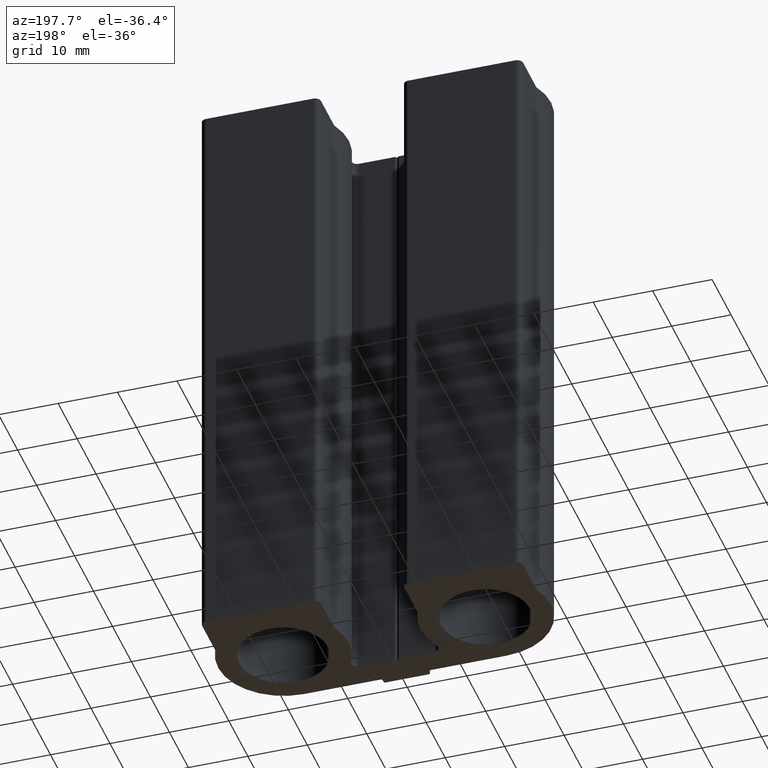
[diagram: clean part render]
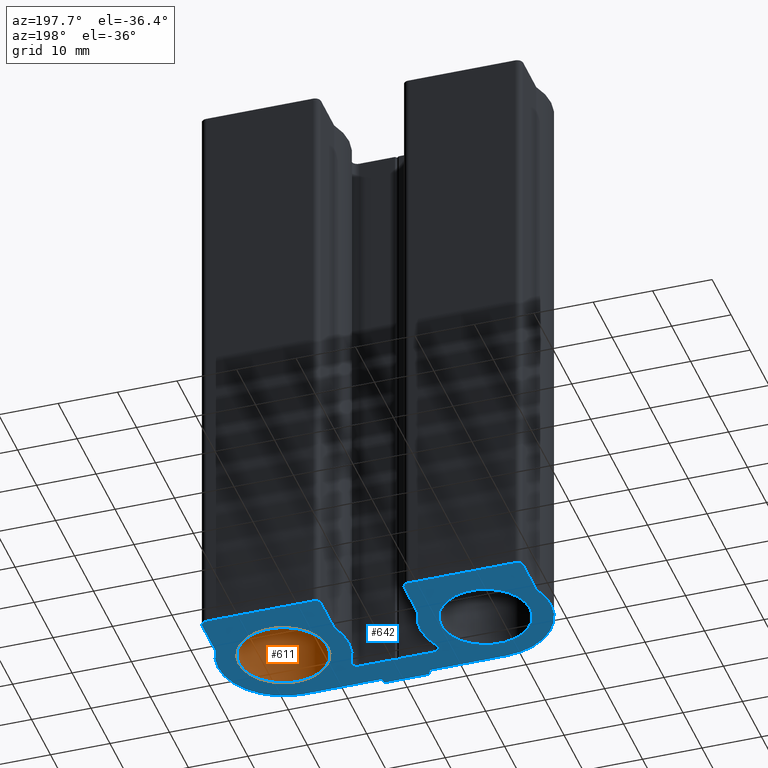
[diagram: same view with the hole feature highlighted: cylindrical wall and planar end face, labeled with their STEP entity ids]
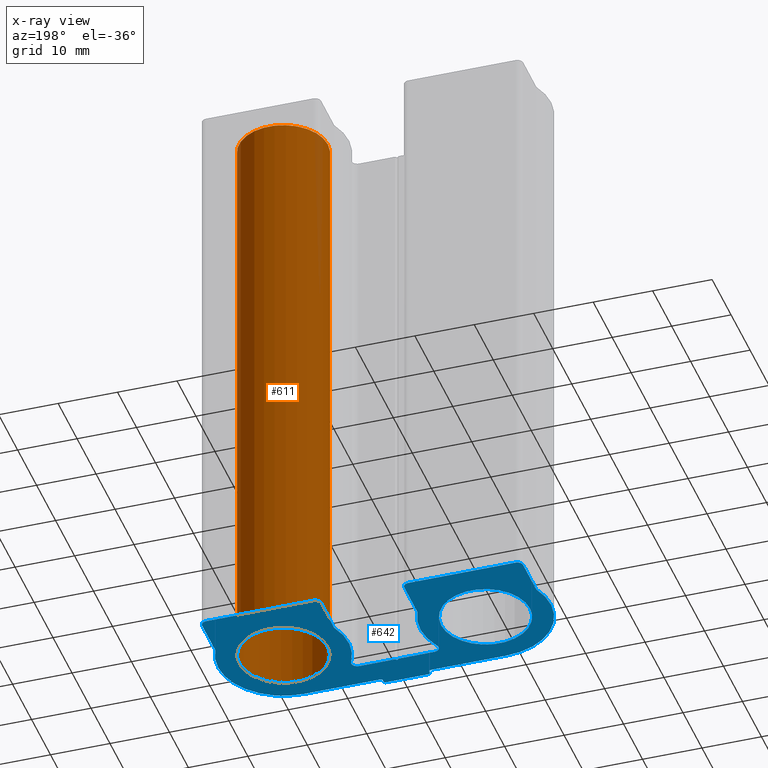
[diagram: x-ray of the same camera — body ghosted, the hole faces saturated]
A machine part, auxiliary view. The highlighted faces form one hole feature of diameter 14.95 mm: the cylindrical wall (entity #611, orange) and its adjacent planar end face (entity #642, blue) — they share a circular edge in the B-rep.
The next image is the same camera in x-ray (body ghosted, the hole faces saturated) — the bore reads through the body.
Wall:
#150=FACE_BOUND('',#190,.T.);
#156=FACE_OUTER_BOUND('',#189,.T.);
#189=EDGE_LOOP('',(#413));
#190=EDGE_LOOP('',(#414));
#228=CIRCLE('',#647,7.47498733999543);
#229=CIRCLE('',#648,7.47498733999543);
#260=VERTEX_POINT('',#904);
#261=VERTEX_POINT('',#906);
#322=EDGE_CURVE('',#260,#260,#228,.T.);
#323=EDGE_CURVE('',#261,#261,#229,.T.);
#413=ORIENTED_EDGE('',*,*,#322,.F.);
#414=ORIENTED_EDGE('',*,*,#323,.F.);
#595=CYLINDRICAL_SURFACE('',#646,7.47498733999543);
#611=ADVANCED_FACE('',(#156,#150),#595,.F.);
#646=AXIS2_PLACEMENT_3D('',#903,#713,#714);
#647=AXIS2_PLACEMENT_3D('',#905,#715,#716);
#648=AXIS2_PLACEMENT_3D('',#907,#717,#718);
#713=DIRECTION('center_axis',(0.,0.,1.));
#714=DIRECTION('ref_axis',(-1.,0.,0.));
#715=DIRECTION('center_axis',(0.,0.,-1.));
#716=DIRECTION('ref_axis',(-1.,0.,0.));
#717=DIRECTION('center_axis',(0.,0.,1.));
#718=DIRECTION('ref_axis',(-1.,0.,0.));
#903=CARTESIAN_POINT('Origin',(16.9999719599881,11.9999892699735,0.));
#904=CARTESIAN_POINT('',(24.4749592999835,11.9999892699735,100.));
#905=CARTESIAN_POINT('Origin',(16.9999719599881,11.9999892699735,100.));
#906=CARTESIAN_POINT('',(24.4749592999835,11.9999892699735,0.));
#907=CARTESIAN_POINT('Origin',(16.9999719599881,11.9999892699735,0.));
End face:
#15=LINE('',#916,#74);
#19=LINE('',#924,#78);
#22=LINE('',#930,#81);
#27=LINE('',#948,#86);
#31=LINE('',#960,#90);
#35=LINE('',#972,#94);
#39=LINE('',#984,#98);
#43=LINE('',#996,#102);
#47=LINE('',#1008,#106);
#51=LINE('',#1020,#110);
#55=LINE('',#1032,#114);
#59=LINE('',#1044,#118);
#63=LINE('',#1056,#122);
#67=LINE('',#1068,#126);
#72=LINE('',#1085,#131);
#74=VECTOR('',#727,0.424262371469913);
#78=VECTOR('',#733,0.424264839462219);
#81=VECTOR('',#738,6.03461659411528);
#86=VECTOR('',#757,6.91739797517743);
#90=VECTOR('',#769,17.999964);
#94=VECTOR('',#781,6.9173979751806);
#98=VECTOR('',#793,12.7999774499939);
#102=VECTOR('',#805,0.40000453877397);
#106=VECTOR('',#817,7.19998254000612);
#110=VECTOR('',#829,0.400000728781609);
#114=VECTOR('',#841,12.7999736400015);
#118=VECTOR('',#853,6.9173979751774);
#122=VECTOR('',#865,17.9999620859527);
#126=VECTOR('',#877,6.91740179502026);
#131=VECTOR('',#896,6.0346253807251);
#148=PLANE('',#709);
#152=FACE_BOUND('',#223,.T.);
#153=FACE_BOUND('',#224,.T.);
#187=FACE_OUTER_BOUND('',#222,.T.);
#222=EDGE_LOOP('',(#533,#534,#535,#536,#537,#538,#539,#540,#541,#542,#543,
#544,#545,#546,#547,#548,#549,#550,#551,#552,#553,#554,#555,#556,#557,#558,
#559,#560,#561));
#223=EDGE_LOOP('',(#562));
#224=EDGE_LOOP('',(#563));
#229=CIRCLE('',#648,7.47498733999543);
#231=CIRCLE('',#651,7.47498733999542);
#232=CIRCLE('',#656,0.999996077032479);
#234=CIRCLE('',#659,10.9999803253407);
#236=CIRCLE('',#663,0.99999609210157);
#238=CIRCLE('',#667,0.999998004051739);
#240=CIRCLE('',#671,10.9999774417901);
#242=CIRCLE('',#675,0.300000541219139);
#244=CIRCLE('',#679,0.29999864124116);
#246=CIRCLE('',#683,0.300000546219096);
#248=CIRCLE('',#687,0.300002451209252);
#250=CIRCLE('',#691,10.9999748453875);
#252=CIRCLE('',#695,0.999998004051122);
#254=CIRCLE('',#699,0.999994180164492);
#256=CIRCLE('',#703,10.9999754773308);
#258=CIRCLE('',#706,0.999997775475729);
#261=VERTEX_POINT('',#906);
#263=VERTEX_POINT('',#911);
#264=VERTEX_POINT('',#914);
#265=VERTEX_POINT('',#915);
#268=VERTEX_POINT('',#923);
#270=VERTEX_POINT('',#929);
#272=VERTEX_POINT('',#935);
#274=VERTEX_POINT('',#941);
#276=VERTEX_POINT('',#947);
#278=VERTEX_POINT('',#953);
#280=VERTEX_POINT('',#959);
#282=VERTEX_POINT('',#965);
#284=VERTEX_POINT('',#971);
#286=VERTEX_POINT('',#977);
#288=VERTEX_POINT('',#983);
#290=VERTEX_POINT('',#989);
#292=VERTEX_POINT('',#995);
#294=VERTEX_POINT('',#1001);
#296=VERTEX_POINT('',#1007);
#298=VERTEX_POINT('',#1013);
#300=VERTEX_POINT('',#1019);
#302=VERTEX_POINT('',#1025);
#304=VERTEX_POINT('',#1031);
#306=VERTEX_POINT('',#1037);
#308=VERTEX_POINT('',#1043);
#310=VERTEX_POINT('',#1049);
#312=VERTEX_POINT('',#1055);
#314=VERTEX_POINT('',#1061);
#316=VERTEX_POINT('',#1067);
#318=VERTEX_POINT('',#1073);
#320=VERTEX_POINT('',#1079);
#323=EDGE_CURVE('',#261,#261,#229,.T.);
#325=EDGE_CURVE('',#263,#263,#231,.T.);
#326=EDGE_CURVE('',#264,#265,#15,.T.);
#330=EDGE_CURVE('',#265,#268,#19,.T.);
#333=EDGE_CURVE('',#268,#270,#22,.T.);
#336=EDGE_CURVE('',#270,#272,#232,.T.);
#339=EDGE_CURVE('',#272,#274,#234,.T.);
#342=EDGE_CURVE('',#274,#276,#27,.T.);
#345=EDGE_CURVE('',#276,#278,#236,.T.);
#348=EDGE_CURVE('',#278,#280,#31,.T.);
#351=EDGE_CURVE('',#280,#282,#238,.T.);
#354=EDGE_CURVE('',#282,#284,#35,.T.);
#357=EDGE_CURVE('',#284,#286,#240,.T.);
#360=EDGE_CURVE('',#286,#288,#39,.T.);
#363=EDGE_CURVE('',#288,#290,#242,.T.);
#366=EDGE_CURVE('',#290,#292,#43,.T.);
#369=EDGE_CURVE('',#292,#294,#244,.T.);
#372=EDGE_CURVE('',#294,#296,#47,.T.);
#375=EDGE_CURVE('',#296,#298,#246,.T.);
#378=EDGE_CURVE('',#298,#300,#51,.T.);
#381=EDGE_CURVE('',#300,#302,#248,.T.);
#384=EDGE_CURVE('',#302,#304,#55,.T.);
#387=EDGE_CURVE('',#304,#306,#250,.T.);
#390=EDGE_CURVE('',#306,#308,#59,.T.);
#393=EDGE_CURVE('',#308,#310,#252,.T.);
#396=EDGE_CURVE('',#310,#312,#63,.T.);
#399=EDGE_CURVE('',#312,#314,#254,.T.);
#402=EDGE_CURVE('',#314,#316,#67,.T.);
#405=EDGE_CURVE('',#316,#318,#256,.T.);
#408=EDGE_CURVE('',#318,#320,#258,.T.);
#411=EDGE_CURVE('',#320,#264,#72,.T.);
#533=ORIENTED_EDGE('',*,*,#411,.T.);
#534=ORIENTED_EDGE('',*,*,#326,.T.);
#535=ORIENTED_EDGE('',*,*,#330,.T.);
#536=ORIENTED_EDGE('',*,*,#333,.T.);
#537=ORIENTED_EDGE('',*,*,#336,.T.);
#538=ORIENTED_EDGE('',*,*,#339,.T.);
#539=ORIENTED_EDGE('',*,*,#342,.T.);
#540=ORIENTED_EDGE('',*,*,#345,.T.);
#541=ORIENTED_EDGE('',*,*,#348,.T.);
#542=ORIENTED_EDGE('',*,*,#351,.T.);
#543=ORIENTED_EDGE('',*,*,#354,.T.);
#544=ORIENTED_EDGE('',*,*,#357,.T.);
#545=ORIENTED_EDGE('',*,*,#360,.T.);
#546=ORIENTED_EDGE('',*,*,#363,.T.);
#547=ORIENTED_EDGE('',*,*,#366,.T.);
#548=ORIENTED_EDGE('',*,*,#369,.T.);
#549=ORIENTED_EDGE('',*,*,#372,.T.);
#550=ORIENTED_EDGE('',*,*,#375,.T.);
#551=ORIENTED_EDGE('',*,*,#378,.T.);
#552=ORIENTED_EDGE('',*,*,#381,.T.);
#553=ORIENTED_EDGE('',*,*,#384,.T.);
#554=ORIENTED_EDGE('',*,*,#387,.T.);
#555=ORIENTED_EDGE('',*,*,#390,.T.);
#556=ORIENTED_EDGE('',*,*,#393,.T.);
#557=ORIENTED_EDGE('',*,*,#396,.T.);
#558=ORIENTED_EDGE('',*,*,#399,.T.);
#559=ORIENTED_EDGE('',*,*,#402,.T.);
#560=ORIENTED_EDGE('',*,*,#405,.T.);
#561=ORIENTED_EDGE('',*,*,#408,.T.);
#562=ORIENTED_EDGE('',*,*,#323,.T.);
#563=ORIENTED_EDGE('',*,*,#325,.T.);
#642=ADVANCED_FACE('',(#187,#152,#153),#148,.F.);
#648=AXIS2_PLACEMENT_3D('',#907,#717,#718);
#651=AXIS2_PLACEMENT_3D('',#912,#723,#724);
#656=AXIS2_PLACEMENT_3D('',#936,#743,#744);
#659=AXIS2_PLACEMENT_3D('',#942,#750,#751);
#663=AXIS2_PLACEMENT_3D('',#954,#762,#763);
#667=AXIS2_PLACEMENT_3D('',#966,#774,#775);
#671=AXIS2_PLACEMENT_3D('',#978,#786,#787);
#675=AXIS2_PLACEMENT_3D('',#990,#798,#799);
#679=AXIS2_PLACEMENT_3D('',#1002,#810,#811);
#683=AXIS2_PLACEMENT_3D('',#1014,#822,#823);
#687=AXIS2_PLACEMENT_3D('',#1026,#834,#835);
#691=AXIS2_PLACEMENT_3D('',#1038,#846,#847);
#695=AXIS2_PLACEMENT_3D('',#1050,#858,#859);
#699=AXIS2_PLACEMENT_3D('',#1062,#870,#871);
#703=AXIS2_PLACEMENT_3D('',#1074,#882,#883);
#706=AXIS2_PLACEMENT_3D('',#1080,#889,#890);
#709=AXIS2_PLACEMENT_3D('',#1087,#898,#899);
#717=DIRECTION('center_axis',(0.,0.,1.));
#718=DIRECTION('ref_axis',(-1.,0.,0.));
#723=DIRECTION('center_axis',(0.,0.,1.));
#724=DIRECTION('ref_axis',(-1.,0.,0.));
#727=DIRECTION('',(0.70710678118661,-0.707106781186485,0.));
#733=DIRECTION('',(0.70711089447572,0.707102667873447,0.));
#738=DIRECTION('',(1.,0.,0.));
#743=DIRECTION('center_axis',(0.,0.,1.));
#744=DIRECTION('ref_axis',(1.15662962756893E-6,-0.999999999999331,0.));
#750=DIRECTION('center_axis',(0.,0.,-1.));
#751=DIRECTION('ref_axis',(0.909090716168773,-0.416598211440888,0.));
#757=DIRECTION('',(-5.52229663769142E-7,0.999999999999847,0.));
#762=DIRECTION('center_axis',(0.,0.,-1.));
#763=DIRECTION('ref_axis',(-1.90790771146953E-6,-0.99999999999818,0.));
#769=DIRECTION('',(1.,0.,0.));
#774=DIRECTION('center_axis',(0.,0.,-1.));
#775=DIRECTION('ref_axis',(-1.,-4.0510875576396E-9,0.));
#781=DIRECTION('',(1.10301360211974E-6,-0.999999999999392,0.));
#786=DIRECTION('center_axis',(0.,0.,-1.));
#787=DIRECTION('ref_axis',(-3.61113710382315E-8,0.999999999999999,0.));
#793=DIRECTION('',(-1.,2.42861714490906E-15,0.));
#798=DIRECTION('center_axis',(0.,0.,1.));
#799=DIRECTION('ref_axis',(-6.37077474600812E-6,0.999999999979707,0.));
#805=DIRECTION('',(8.32657820354764E-15,-1.,0.));
#810=DIRECTION('center_axis',(0.,0.,-1.));
#811=DIRECTION('ref_axis',(1.27293145188023E-5,0.999999999918982,0.));
#817=DIRECTION('',(-1.,-5.8595246170861E-15,0.));
#822=DIRECTION('center_axis',(0.,0.,-1.));
#823=DIRECTION('ref_axis',(0.999999999979865,-6.34592462232643E-6,0.));
#829=DIRECTION('',(-3.33066300556061E-14,1.,0.));
#834=DIRECTION('center_axis',(0.,0.,1.));
#835=DIRECTION('ref_axis',(1.,0.,0.));
#841=DIRECTION('',(-1.,4.51029032591831E-15,0.));
#846=DIRECTION('center_axis',(0.,0.,-1.));
#847=DIRECTION('ref_axis',(0.909090838108012,-0.416597945347878,0.));
#853=DIRECTION('',(-5.50784035933401E-7,0.999999999999848,0.));
#858=DIRECTION('center_axis',(0.,0.,-1.));
#859=DIRECTION('ref_axis',(8.88180192462382E-15,-1.,0.));
#865=DIRECTION('',(1.,-1.72701723153985E-15,0.));
#870=DIRECTION('center_axis',(0.,0.,-1.));
#871=DIRECTION('ref_axis',(-1.,-1.77636717756503E-14,0.));
#877=DIRECTION('',(5.50782674431202E-7,-0.999999999999848,0.));
#882=DIRECTION('center_axis',(0.,0.,-1.));
#883=DIRECTION('ref_axis',(-0.888779929677719,0.458334197504473,0.));
#889=DIRECTION('center_axis',(0.,0.,1.));
#890=DIRECTION('ref_axis',(-0.888782833023241,0.458328567430814,0.));
#896=DIRECTION('',(1.,0.,0.));
#898=DIRECTION('center_axis',(0.,0.,1.));
#899=DIRECTION('ref_axis',(1.,0.,0.));
#906=CARTESIAN_POINT('',(24.4749592999835,11.9999892699735,0.));
#907=CARTESIAN_POINT('Origin',(16.9999719599881,11.9999892699735,0.));
#911=CARTESIAN_POINT('',(-9.52497651000888,11.9999892699735,0.));
#912=CARTESIAN_POINT('Origin',(-16.9999638500043,11.9999892699735,0.));
#914=CARTESIAN_POINT('',(-0.299998640001519,5.49999662998472,0.));
#915=CARTESIAN_POINT('',(1.59867169502448E-7,5.19999783011609,0.));
#916=CARTESIAN_POINT('',(-0.299998640001519,5.49999662998472,0.));
#923=CARTESIAN_POINT('',(0.300002449993897,5.49999662998472,0.));
#924=CARTESIAN_POINT('',(1.59867169502448E-7,5.19999783011609,0.));
#929=CARTESIAN_POINT('',(6.33461904410918,5.49999662998472,0.));
#930=CARTESIAN_POINT('',(0.300002449993897,5.49999662998472,0.));
#935=CARTESIAN_POINT('',(7.22339595655176,6.95832195332827,0.));
#936=CARTESIAN_POINT('Origin',(6.33461788748409,6.49999270701653,0.));
#941=CARTESIAN_POINT('',(6.99998484337492,16.5825473948388,0.));
#942=CARTESIAN_POINT('Origin',(16.9999648351813,11.9999752654169,0.));
#947=CARTESIAN_POINT('',(6.99998102338256,23.4999453700152,0.));
#948=CARTESIAN_POINT('',(6.99998484337492,16.5825473948388,0.));
#953=CARTESIAN_POINT('',(7.99997902338256,24.4999433700152,0.));
#954=CARTESIAN_POINT('Origin',(7.99997711548231,23.4999472779155,0.));
#959=CARTESIAN_POINT('',(25.9999430233826,24.4999433700152,0.));
#960=CARTESIAN_POINT('',(7.99997902338256,24.4999433700152,0.));
#965=CARTESIAN_POINT('',(26.9999421800083,23.4999453700153,0.));
#966=CARTESIAN_POINT('Origin',(25.9999441759566,23.4999453659642,0.));
#971=CARTESIAN_POINT('',(26.9999498099924,16.5825473948389,0.));
#972=CARTESIAN_POINT('',(26.9999421800083,23.4999453700153,0.));
#977=CARTESIAN_POINT('',(16.9999698099923,1.00000562998475,0.));
#978=CARTESIAN_POINT('Origin',(16.9999694127681,11.9999830717748,0.));
#983=CARTESIAN_POINT('',(4.19999235999847,1.00000562998479,0.));
#984=CARTESIAN_POINT('',(16.9999698099923,1.00000562998475,0.));
#989=CARTESIAN_POINT('',(3.89999373002128,0.700003179990842,0.));
#990=CARTESIAN_POINT('Origin',(4.19999427123435,0.700005088771736,0.));
#995=CARTESIAN_POINT('',(3.89999373002128,0.299998641216872,0.));
#996=CARTESIAN_POINT('',(3.89999373002128,0.700003179990842,0.));
#1001=CARTESIAN_POINT('',(3.59999127000306,1.33226762955019E-14,0.));
#1002=CARTESIAN_POINT('Origin',(3.59999508878012,0.299998641216872,0.));
#1007=CARTESIAN_POINT('',(-3.59999127000306,-2.88657986402541E-14,0.));
#1008=CARTESIAN_POINT('',(3.59999127000306,1.33226762955019E-14,0.));
#1013=CARTESIAN_POINT('',(-3.89998991000458,0.300002449993868,0.));
#1014=CARTESIAN_POINT('Origin',(-3.59998936379152,0.300000546213015,0.));
#1019=CARTESIAN_POINT('',(-3.89998991000459,0.700003178775477,0.));
#1020=CARTESIAN_POINT('',(-3.89998991000458,0.300002449993868,0.));
#1025=CARTESIAN_POINT('',(-4.19999235999847,1.00000562998473,0.));
#1026=CARTESIAN_POINT('Origin',(-4.19999236121384,0.700003178775477,0.));
#1031=CARTESIAN_POINT('',(-16.999966,1.00000562998479,0.));
#1032=CARTESIAN_POINT('',(-4.19999235999847,1.00000562998473,0.));
#1037=CARTESIAN_POINT('',(-26.9999402800114,16.5825473948389,0.));
#1038=CARTESIAN_POINT('Origin',(-16.999963928651,11.9999804753721,0.));
#1043=CARTESIAN_POINT('',(-26.9999440900038,23.4999453700153,0.));
#1044=CARTESIAN_POINT('',(-26.9999402800114,16.5825473948389,0.));
#1049=CARTESIAN_POINT('',(-25.9999460859527,24.4999433700153,0.));
#1050=CARTESIAN_POINT('Origin',(-25.9999460859527,23.4999453659642,0.));
#1055=CARTESIAN_POINT('',(-7.99998399999999,24.4999433700153,0.));
#1056=CARTESIAN_POINT('',(-25.9999460859527,24.4999433700153,0.));
#1061=CARTESIAN_POINT('',(-6.99998599999269,23.4999491898581,0.));
#1062=CARTESIAN_POINT('Origin',(-7.99998018015718,23.4999491898581,0.));
#1067=CARTESIAN_POINT('',(-6.99998219000763,16.5825473948389,0.));
#1068=CARTESIAN_POINT('',(-6.99998599999269,23.4999491898581,0.));
#1073=CARTESIAN_POINT('',(-7.22340474316163,6.95832195332823,0.));
#1074=CARTESIAN_POINT('Origin',(-16.9999621743603,11.9999868862995,0.));
#1079=CARTESIAN_POINT('',(-6.33462402072662,5.49999662998472,0.));
#1080=CARTESIAN_POINT('Origin',(-6.33462388725737,6.49999440546044,0.));
#1085=CARTESIAN_POINT('',(-6.33462402072662,5.49999662998472,0.));
#1087=CARTESIAN_POINT('Origin',(8.42770151425181E-7,12.3898146328957,0.));